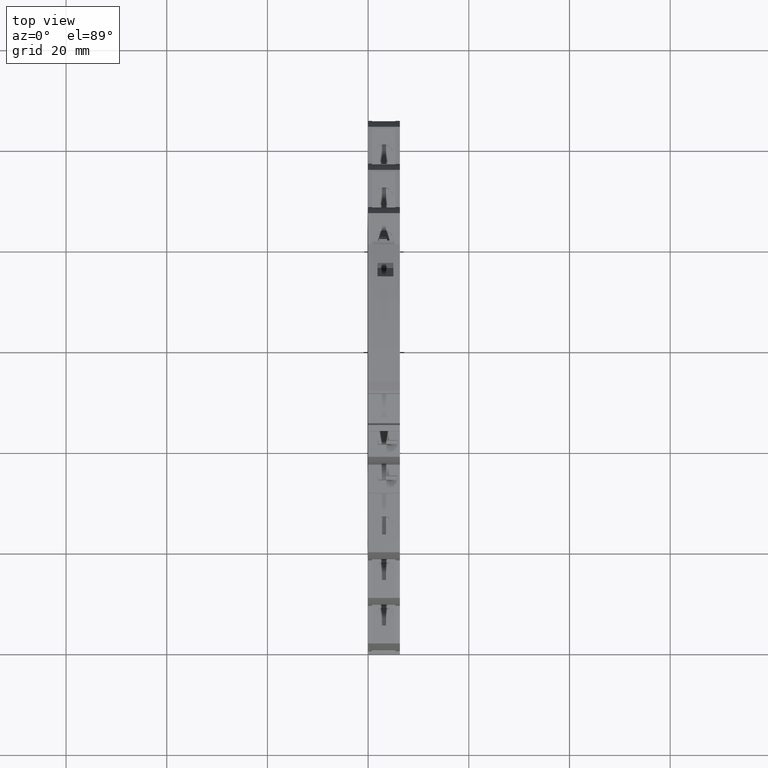
[diagram: clean part render]
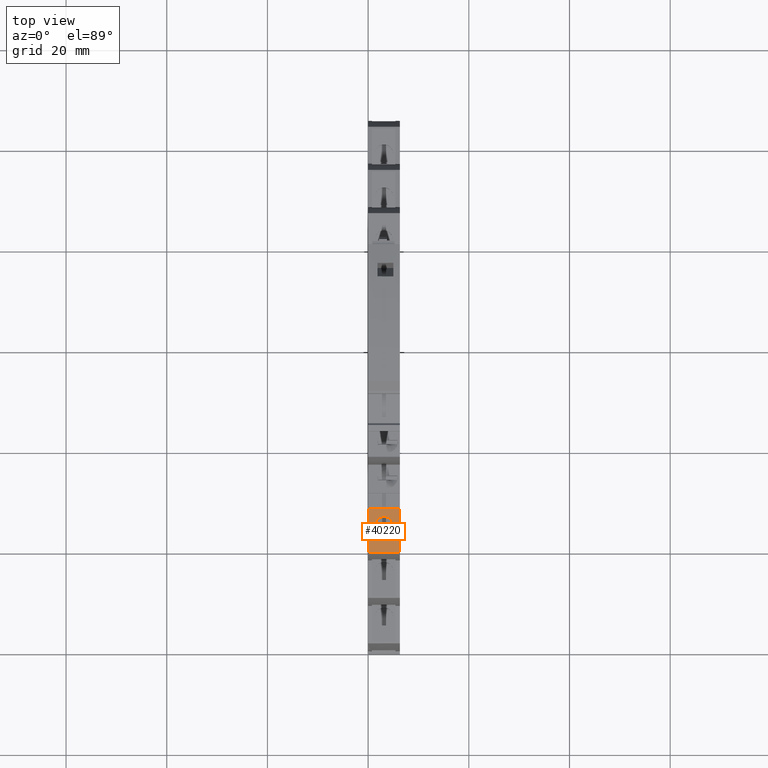
[diagram: same view with one face highlighted and labeled with its STEP entity id]
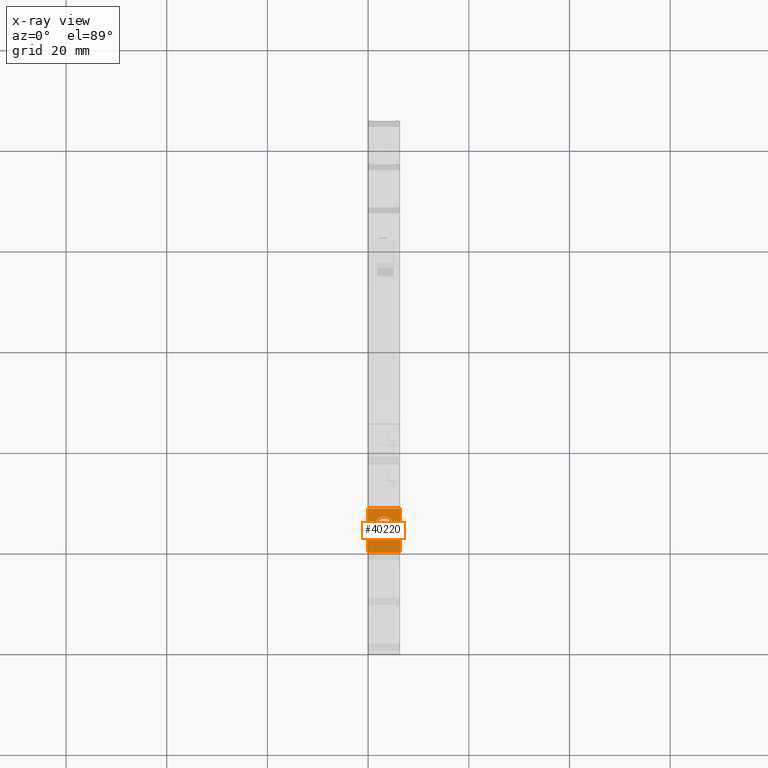
[diagram: x-ray of the same camera — body ghosted, the highlighted face saturated]
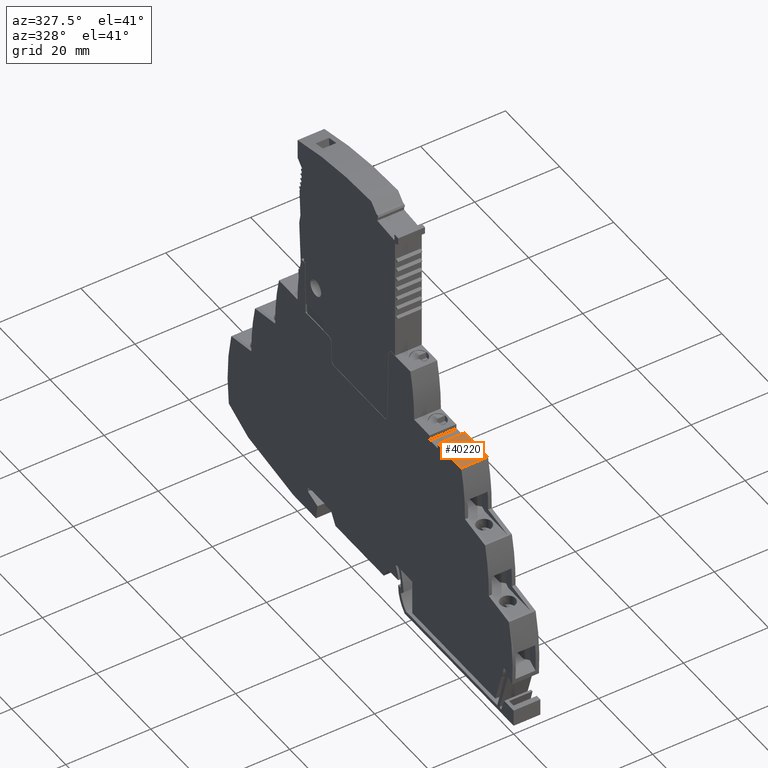
[diagram: same view with one face highlighted and labeled with its STEP entity id]
A machine part, top view. The second image highlights one B-rep face of the part: STEP entity #40220.
The next image is the same camera in x-ray: the body ghosted, the highlighted face saturated — about 0% of this face is hidden behind the body in this view.
A second angle (auxiliary view) of the same face is appended — the face is thin or edge-on in the first view.
In plain terms, the highlighted planar face has unit normal (-0, -0, -1).
Its self-contained STEP definition (entity closure, byte-faithful):
#1410=CARTESIAN_POINT('',(0.,46.5999999451111,5.14241962705408E-8));
#1420=DIRECTION('',(1.,-2.77555756156289E-16,4.25831716362875E-18));
#1430=VECTOR('',#1420,1.);
#1440=LINE('',#1410,#1430);
#1450=CARTESIAN_POINT('',(-56.6854746019642,46.5999999451111,
5.14241960291561E-8));
#1460=VERTEX_POINT('',#1450);
#1470=CARTESIAN_POINT('',(-48.0204363833333,46.5999999451111,
5.14241960660546E-8));
#1480=VERTEX_POINT('',#1470);
#1490=EDGE_CURVE('',#1460,#1480,#1440,.T.);
#9950=CARTESIAN_POINT('',(-48.0204363813735,46.5999999381589,
6.29999998352675));
#9960=VERTEX_POINT('',#9950);
#14860=CARTESIAN_POINT('',(-56.6854746108229,46.5999999381589,
6.29999997250192));
#14870=VERTEX_POINT('',#14860);
#14900=CARTESIAN_POINT('',(0.,46.5999999381589,6.3000000446248));
#14910=DIRECTION('',(-1.,2.78959807151363E-16,-1.27233440234888E-9));
#14920=VECTOR('',#14910,1.);
#14930=LINE('',#14900,#14920);
#14940=EDGE_CURVE('',#9960,#14870,#14930,.T.);
#39530=CARTESIAN_POINT('',(-56.6854746108229,46.5999999381589,
6.29999997250192));
#39540=DIRECTION('',(-1.27233440234888E-9,-1.65436122510606E-24,1.));
#39550=VECTOR('',#39540,1.);
#39560=LINE('',#39530,#39550);
#39570=EDGE_CURVE('',#1460,#14870,#39560,.T.);
#39910=CARTESIAN_POINT('',(-48.3283752407925,46.5999999451111,
5.14241960647431E-8));
#39920=DIRECTION('',(-2.7755575615159E-16,-1.,-1.10352358519E-9));
#39930=DIRECTION('',(1.,-2.77555756156289E-16,4.25831718557474E-18));
#39940=AXIS2_PLACEMENT_3D('',#39910,#39920,#39930);
#39950=PLANE('',#39940);
#39960=CARTESIAN_POINT('',(-51.3972486528337,46.599999941635,
3.1499998361368));
#39970=DIRECTION('',(4.96422142884944E-8,-0.999999999999999,
-1.0923778365853E-9));
#39980=DIRECTION('',(0.999999999999999,4.96422142898862E-8,
-1.2741254964668E-9));
#39990=AXIS2_PLACEMENT_3D('',#39960,#39970,#39980);
#40000=CIRCLE('',#39990,1.8);
#40010=CARTESIAN_POINT('',(-53.1972486528337,46.599999852279,
3.14999983843023));
#40020=VERTEX_POINT('',#40010);
#40030=CARTESIAN_POINT('',(-49.5972486528337,46.600000030991,
3.14999983384338));
#40040=VERTEX_POINT('',#40030);
#40050=EDGE_CURVE('',#40020,#40040,#40000,.T.);
#40060=ORIENTED_EDGE('',*,*,#40050,.T.);
#40070=EDGE_CURVE('',#40040,#40020,#40000,.T.);
#40080=ORIENTED_EDGE('',*,*,#40070,.T.);
#40090=EDGE_LOOP('',(#40080,#40060));
#40100=FACE_BOUND('',#40090,.T.);
#40110=CARTESIAN_POINT('',(-48.0204363833333,46.5999999451111,0.));
#40120=DIRECTION('',(-3.11085955861314E-10,1.10352358519E-9,-1.));
#40130=VECTOR('',#40120,1.);
#40140=LINE('',#40110,#40130);
#40150=EDGE_CURVE('',#9960,#1480,#40140,.T.);
#40160=ORIENTED_EDGE('',*,*,#40150,.T.);
#40170=ORIENTED_EDGE('',*,*,#14940,.F.);
#40180=ORIENTED_EDGE('',*,*,#39570,.T.);
#40190=ORIENTED_EDGE('',*,*,#1490,.F.);
#40200=EDGE_LOOP('',(#40190,#40180,#40170,#40160));
#40210=FACE_OUTER_BOUND('',#40200,.T.);
#40220=ADVANCED_FACE('',(#40100,#40210),#39950,.F.);